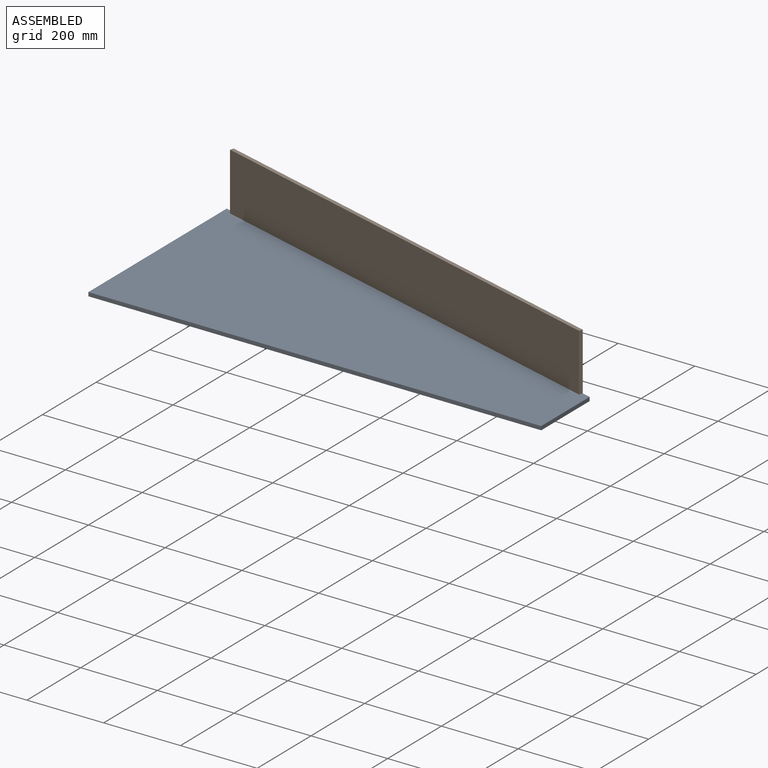
[diagram: assembled view]
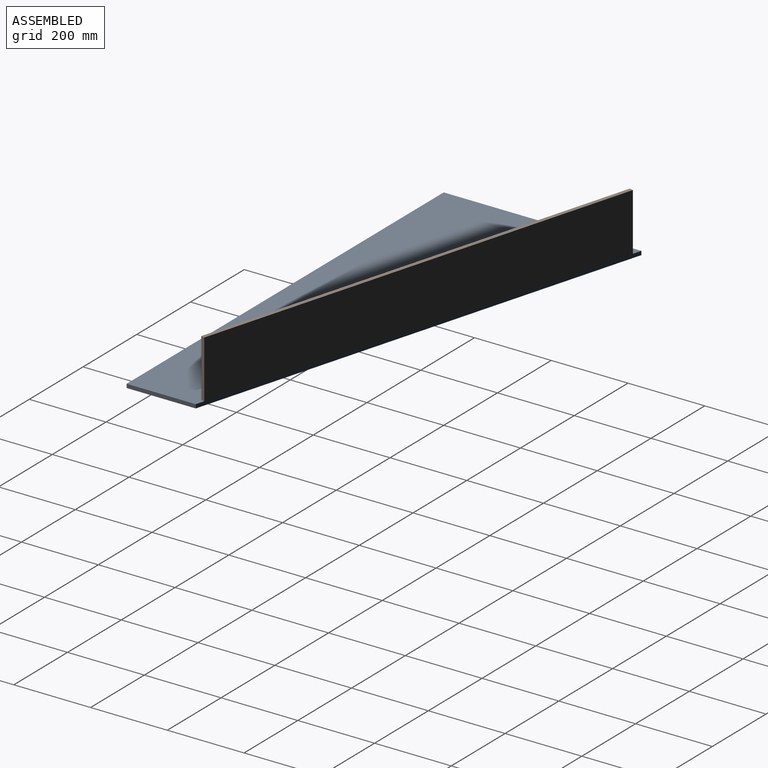
[diagram: assembled view, second angle]
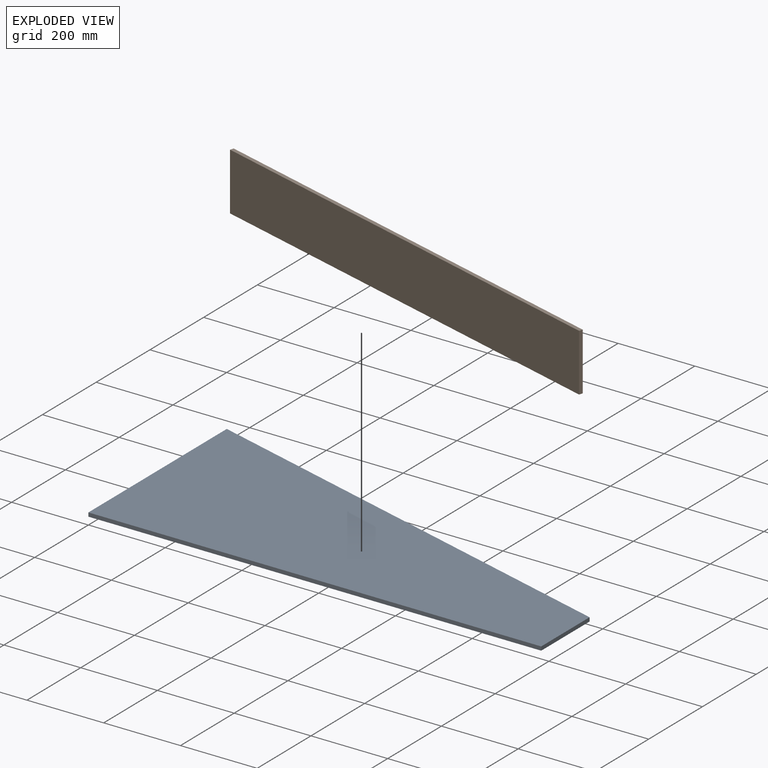
[diagram: exploded view]
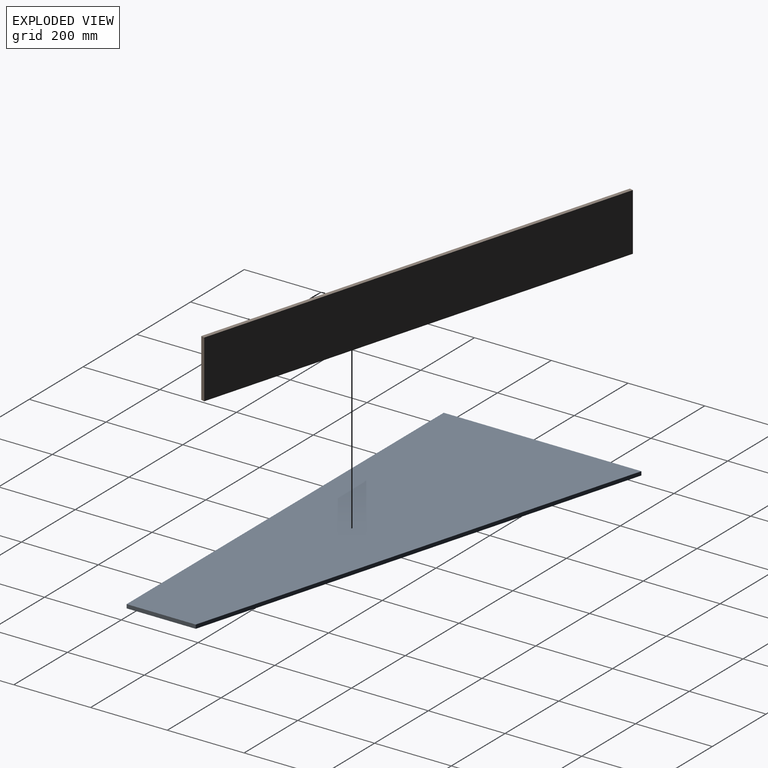
[diagram: exploded view, second angle]
ASSEMBLY  parts=2 mates=2
PART A: 6 faces, bbox 1180x515x10 mm
  f0: plane 515x10mm, normal (-1,0,0), area 5150mm2, adj f1,f3,f4,f5
  f1: plane 1180x10mm, normal (0,-1,0), area 11800mm2, adj f0,f2,f4,f5
  f2: plane 180x10mm, normal (1,0,0), area 1800mm2, adj f1,f3,f4,f5
  f3: plane 1180x335mm, normal (0.27,0.96,0), area 12266.3mm2, adj f0,f2,f4,f5
  f4: plane 1180x515mm, normal (0,0,1), area 410050mm2, adj f0,f1,f2,f3
  f5: plane 1180x515mm, normal (0,0,-1), area 410050mm2, adj f0,f1,f2,f3
PART B: 6 faces, bbox 10x1180x150 mm
  f0: plane 150x10mm, normal (0,-1,0), area 1500mm2, adj f1,f3,f4,f5
  f1: plane 1180x10mm, normal (0,0,-1), area 11800mm2, adj f0,f2,f4,f5
  f2: plane 150x10mm, normal (0,1,0), area 1500mm2, adj f1,f3,f4,f5
  f3: plane 1180x10mm, normal (0,0,1), area 11800mm2, adj f0,f2,f4,f5
  f4: plane 1180x150mm, normal (1,0,0), area 177000mm2, adj f0,f1,f2,f3
  f5: plane 1180x150mm, normal (-1,0,0), area 177000mm2, adj f0,f1,f2,f3
PLACE A at identity fixed
PLACE B rot(axis=(0,0,1),74.2deg) t=(1154.84,176.75,10)mm
MATE planar B.f1 <-> A.f4  axis (0,0,-1) through (588.63,342.69,10)mm
MATE planar B.f4 <-> A.f3  axis (0.27,0.96,0) through (590,347.5,85)mm
